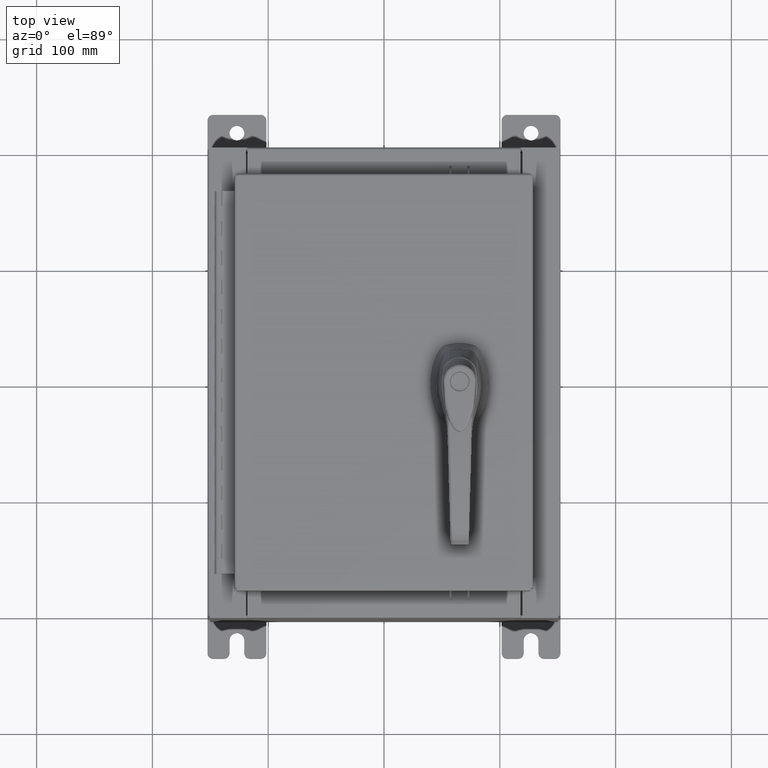
[diagram: clean part render]
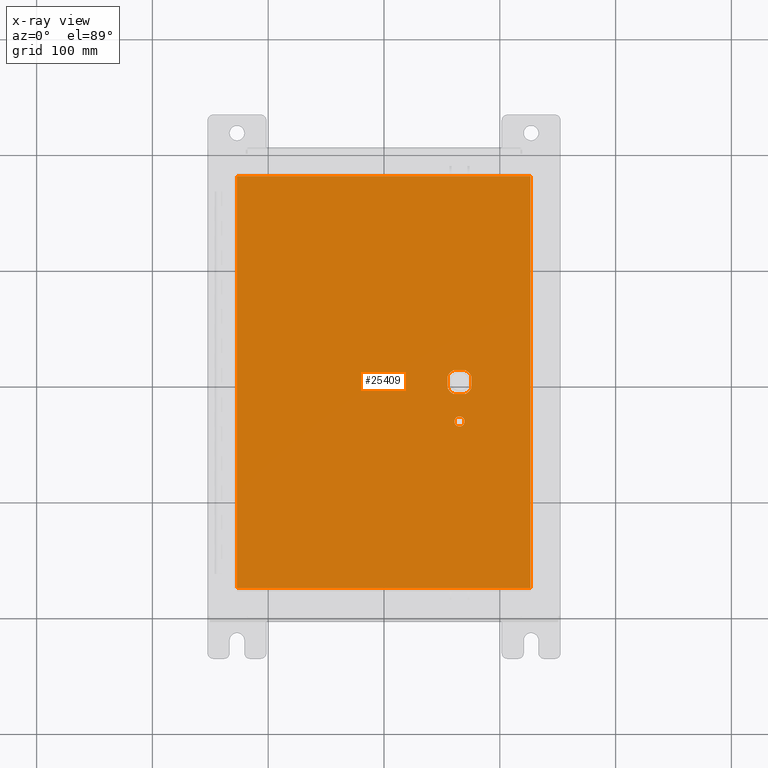
[diagram: x-ray — body ghosted, one internal face saturated and labeled with its STEP entity id]
A machine part, top view, then the same camera in x-ray: the body is ghosted and one INTERNAL B-rep face — a face not visible from any outside direction — is saturated and labeled: STEP entity #25409.
In plain terms, the highlighted planar face has unit normal (0, 0, -1).
Its self-contained STEP definition (entity closure, byte-faithful):
#214 = EDGE_CURVE ( 'NONE', #55148, #54031, #15496, .T. ) ;
#2437 = ORIENTED_EDGE ( 'NONE', *, *, #35450, .T. ) ;
#2931 = EDGE_LOOP ( 'NONE', ( #3816, #52309, #38777, #35025 ) ) ;
#3636 = CARTESIAN_POINT ( 'NONE',  ( 2.577999999999998500, 0.0000000000000000000, -0.07470000000000003000 ) ) ;
#3816 = ORIENTED_EDGE ( 'NONE', *, *, #214, .F. ) ;
#5433 = CARTESIAN_POINT ( 'NONE',  ( 0.0000000000000000000, 0.0000000000000000000, -0.07470000000000000300 ) ) ;
#6138 = PLANE ( 'NONE',  #34715 ) ;
#8822 = ORIENTED_EDGE ( 'NONE', *, *, #102150, .T. ) ;
#8946 = DIRECTION ( 'NONE',  ( -0.0000000000000000000, -0.0000000000000000000, 1.000000000000000000 ) ) ;
#11063 = DIRECTION ( 'NONE',  ( 1.364372904336406500E-015, -1.000000000000000000, 0.0000000000000000000 ) ) ;
#11236 = LINE ( 'NONE', #74907, #30757 ) ;
#11772 = ORIENTED_EDGE ( 'NONE', *, *, #89308, .T. ) ;
#12055 = DIRECTION ( 'NONE',  ( -1.000000000000000000, 0.0000000000000000000, 0.0000000000000000000 ) ) ;
#12228 = VERTEX_POINT ( 'NONE', #63242 ) ;
#13983 = EDGE_CURVE ( 'NONE', #94466, #55148, #40260, .T. ) ;
#14498 = DIRECTION ( 'NONE',  ( 0.0000000000000000000, 0.0000000000000000000, -1.000000000000000000 ) ) ;
#14613 = LINE ( 'NONE', #74428, #74936 ) ;
#14641 = CARTESIAN_POINT ( 'NONE',  ( 2.778227370756308100, 0.4029999999999250300, -0.07470000000000003000 ) ) ;
#15089 = EDGE_CURVE ( 'NONE', #54031, #41289, #27324, .T. ) ;
#15496 = LINE ( 'NONE', #40014, #103333 ) ;
#17088 = DIRECTION ( 'NONE',  ( 1.000000000000000000, 0.0000000000000000000, 0.0000000000000000000 ) ) ;
#17944 = DIRECTION ( 'NONE',  ( -1.000000000000000000, 0.0000000000000000000, 0.0000000000000000000 ) ) ;
#22141 = VERTEX_POINT ( 'NONE', #98907 ) ;
#22365 = DIRECTION ( 'NONE',  ( -0.0000000000000000000, -0.0000000000000000000, 1.000000000000000000 ) ) ;
#24494 = CARTESIAN_POINT ( 'NONE',  ( 4.990299999999998600, 7.006300000000000400, -0.07470000000000021100 ) ) ;
#25409 = ADVANCED_FACE ( 'NONE', ( #97755, #72914, #95127 ), #6138, .T. ) ;
#26704 = CARTESIAN_POINT ( 'NONE',  ( 2.577999999999998500, 0.0000000000000000000, -0.07470000000000003000 ) ) ;
#26997 = AXIS2_PLACEMENT_3D ( 'NONE', #58239, #8946, #66358 ) ;
#27324 = LINE ( 'NONE', #24494, #90230 ) ;
#29190 = CARTESIAN_POINT ( 'NONE',  ( 2.749499999999998500, -1.338000000000000100, -0.07470000000000003000 ) ) ;
#30757 = VECTOR ( 'NONE', #17944, 39.37007874015748100 ) ;
#30870 = VERTEX_POINT ( 'NONE', #103516 ) ;
#31045 = EDGE_CURVE ( 'NONE', #12228, #52940, #60894, .T. ) ;
#31229 = CARTESIAN_POINT ( 'NONE',  ( -4.990300000000000400, 7.006300000000000400, -0.07470000000000019700 ) ) ;
#32452 = DIRECTION ( 'NONE',  ( -1.000000000000000000, -0.0000000000000000000, -0.0000000000000000000 ) ) ;
#33462 = CARTESIAN_POINT ( 'NONE',  ( 2.377772629243688900, 0.4029999999999252000, -0.07470000000000003000 ) ) ;
#34418 = CARTESIAN_POINT ( 'NONE',  ( 2.980999999999924400, -0.2002273707563078100, -0.07470000000000003000 ) ) ;
#34715 = AXIS2_PLACEMENT_3D ( 'NONE', #5433, #14498, #71871 ) ;
#34980 = DIRECTION ( 'NONE',  ( -1.000000000000000000, 8.881784197001256300E-016, 0.0000000000000000000 ) ) ;
#35025 = ORIENTED_EDGE ( 'NONE', *, *, #15089, .F. ) ;
#35450 = EDGE_CURVE ( 'NONE', #92286, #72906, #54897, .T. ) ;
#38353 = ORIENTED_EDGE ( 'NONE', *, *, #31045, .T. ) ;
#38777 = ORIENTED_EDGE ( 'NONE', *, *, #84270, .F. ) ;
#39292 = CARTESIAN_POINT ( 'NONE',  ( 2.577999999999998500, 0.0000000000000000000, -0.07470000000000003000 ) ) ;
#39452 = DIRECTION ( 'NONE',  ( 0.0000000000000000000, -1.000000000000000000, 0.0000000000000000000 ) ) ;
#39980 = CARTESIAN_POINT ( 'NONE',  ( 2.577999999999998500, 0.0000000000000000000, -0.07470000000000003000 ) ) ;
#40014 = CARTESIAN_POINT ( 'NONE',  ( 4.990299999999998600, -7.006300000000000400, -0.07469999999999966900 ) ) ;
#40260 = LINE ( 'NONE', #46136, #61939 ) ;
#41289 = VERTEX_POINT ( 'NONE', #95033 ) ;
#44666 = EDGE_CURVE ( 'NONE', #72675, #22141, #71930, .T. ) ;
#46136 = CARTESIAN_POINT ( 'NONE',  ( -4.990300000000000400, -7.006300000000000400, -0.07470000000000021100 ) ) ;
#46594 = ORIENTED_EDGE ( 'NONE', *, *, #54232, .T. ) ;
#47490 = DIRECTION ( 'NONE',  ( -1.000000000000000000, 0.0000000000000000000, 0.0000000000000000000 ) ) ;
#48179 = DIRECTION ( 'NONE',  ( -1.000000000000000000, 0.0000000000000000000, 0.0000000000000000000 ) ) ;
#48545 = EDGE_CURVE ( 'NONE', #30870, #65405, #51255, .T. ) ;
#48829 = ORIENTED_EDGE ( 'NONE', *, *, #101881, .F. ) ;
#50347 = VECTOR ( 'NONE', #69242, 39.37007874015748100 ) ;
#51255 = CIRCLE ( 'NONE', #83524, 0.4499999999999156900 ) ;
#51695 = CIRCLE ( 'NONE', #26997, 0.1715000000000000700 ) ;
#52255 = CARTESIAN_POINT ( 'NONE',  ( 2.175000000000072700, 0.0000000000000000000, -0.07470000000000003000 ) ) ;
#52309 = ORIENTED_EDGE ( 'NONE', *, *, #13983, .F. ) ;
#52688 = CARTESIAN_POINT ( 'NONE',  ( -4.990299999999999500, -7.006300000000000400, -0.07470000000000000300 ) ) ;
#52940 = VERTEX_POINT ( 'NONE', #34418 ) ;
#53698 = CIRCLE ( 'NONE', #59537, 0.4499999999999156900 ) ;
#54031 = VERTEX_POINT ( 'NONE', #106778 ) ;
#54232 = EDGE_CURVE ( 'NONE', #22141, #73737, #53698, .T. ) ;
#54867 = AXIS2_PLACEMENT_3D ( 'NONE', #71309, #22365, #79648 ) ;
#54897 = CIRCLE ( 'NONE', #54867, 0.1715000000000000700 ) ;
#55148 = VERTEX_POINT ( 'NONE', #74774 ) ;
#55496 = ORIENTED_EDGE ( 'NONE', *, *, #73306, .T. ) ;
#56072 = AXIS2_PLACEMENT_3D ( 'NONE', #39292, #96830, #47490 ) ;
#58239 = CARTESIAN_POINT ( 'NONE',  ( 2.577999999999998500, -1.338000000000000100, -0.07470000000000003000 ) ) ;
#59127 = ORIENTED_EDGE ( 'NONE', *, *, #44666, .T. ) ;
#59537 = AXIS2_PLACEMENT_3D ( 'NONE', #26704, #84054, #34980 ) ;
#60894 = CIRCLE ( 'NONE', #56072, 0.4499999999999156900 ) ;
#61259 = DIRECTION ( 'NONE',  ( -0.0000000000000000000, -0.0000000000000000000, 1.000000000000000000 ) ) ;
#61939 = VECTOR ( 'NONE', #95459, 39.37007874015748100 ) ;
#62810 = LINE ( 'NONE', #31229, #104410 ) ;
#63242 = CARTESIAN_POINT ( 'NONE',  ( 2.778227370756308100, -0.4029999999999252000, -0.07470000000000003000 ) ) ;
#64881 = EDGE_CURVE ( 'NONE', #72906, #92286, #51695, .T. ) ;
#65405 = VERTEX_POINT ( 'NONE', #14641 ) ;
#66358 = DIRECTION ( 'NONE',  ( -1.000000000000000000, 0.0000000000000000000, 0.0000000000000000000 ) ) ;
#69242 = DIRECTION ( 'NONE',  ( 0.0000000000000000000, -1.000000000000000000, 0.0000000000000000000 ) ) ;
#70847 = VERTEX_POINT ( 'NONE', #33462 ) ;
#71019 = EDGE_LOOP ( 'NONE', ( #38353, #48829, #97282, #8822, #11772, #59127, #46594, #55496 ) ) ;
#71309 = CARTESIAN_POINT ( 'NONE',  ( 2.577999999999998500, -1.338000000000000100, -0.07470000000000003000 ) ) ;
#71871 = DIRECTION ( 'NONE',  ( -1.000000000000000000, 0.0000000000000000000, -0.0000000000000000000 ) ) ;
#71930 = LINE ( 'NONE', #52255, #50347 ) ;
#72675 = VERTEX_POINT ( 'NONE', #90570 ) ;
#72906 = VERTEX_POINT ( 'NONE', #29190 ) ;
#72914 = FACE_OUTER_BOUND ( 'NONE', #2931, .T. ) ;
#73119 = AXIS2_PLACEMENT_3D ( 'NONE', #39980, #97556, #48179 ) ;
#73306 = EDGE_CURVE ( 'NONE', #73737, #12228, #14613, .T. ) ;
#73737 = VERTEX_POINT ( 'NONE', #103279 ) ;
#74428 = CARTESIAN_POINT ( 'NONE',  ( 0.0000000000000000000, -0.4029999999999252000, -0.07470000000000003000 ) ) ;
#74774 = CARTESIAN_POINT ( 'NONE',  ( 4.990299999999998600, -7.006300000000000400, -0.07470000000000000300 ) ) ;
#74907 = CARTESIAN_POINT ( 'NONE',  ( 0.0000000000000000000, 0.4029999999999252000, -0.07470000000000003000 ) ) ;
#74936 = VECTOR ( 'NONE', #17088, 39.37007874015748100 ) ;
#76765 = CARTESIAN_POINT ( 'NONE',  ( 2.980999999999924400, 4.067195627826724000E-015, -0.07470000000000003000 ) ) ;
#79648 = DIRECTION ( 'NONE',  ( -1.000000000000000000, 0.0000000000000000000, 0.0000000000000000000 ) ) ;
#83524 = AXIS2_PLACEMENT_3D ( 'NONE', #3636, #61259, #12055 ) ;
#84054 = DIRECTION ( 'NONE',  ( -0.0000000000000000000, -0.0000000000000000000, 1.000000000000000000 ) ) ;
#84270 = EDGE_CURVE ( 'NONE', #41289, #94466, #62810, .T. ) ;
#84631 = LINE ( 'NONE', #76765, #104268 ) ;
#89308 = EDGE_CURVE ( 'NONE', #70847, #72675, #103793, .T. ) ;
#90230 = VECTOR ( 'NONE', #32452, 39.37007874015748100 ) ;
#90570 = CARTESIAN_POINT ( 'NONE',  ( 2.175000000000072700, 0.2002273707563080300, -0.07470000000000003000 ) ) ;
#91520 = ORIENTED_EDGE ( 'NONE', *, *, #64881, .T. ) ;
#92286 = VERTEX_POINT ( 'NONE', #93115 ) ;
#93115 = CARTESIAN_POINT ( 'NONE',  ( 2.406499999999998500, -1.338000000000000100, -0.07470000000000003000 ) ) ;
#94466 = VERTEX_POINT ( 'NONE', #52688 ) ;
#95033 = CARTESIAN_POINT ( 'NONE',  ( -4.990300000000000400, 7.006299999999998600, -0.07470000000000000300 ) ) ;
#95127 = FACE_BOUND ( 'NONE', #71019, .T. ) ;
#95459 = DIRECTION ( 'NONE',  ( 1.000000000000000000, -0.0000000000000000000, -0.0000000000000000000 ) ) ;
#96830 = DIRECTION ( 'NONE',  ( -0.0000000000000000000, -0.0000000000000000000, 1.000000000000000000 ) ) ;
#97282 = ORIENTED_EDGE ( 'NONE', *, *, #48545, .T. ) ;
#97556 = DIRECTION ( 'NONE',  ( -0.0000000000000000000, -0.0000000000000000000, 1.000000000000000000 ) ) ;
#97755 = FACE_BOUND ( 'NONE', #99588, .T. ) ;
#98907 = CARTESIAN_POINT ( 'NONE',  ( 2.175000000000072700, -0.2002273707563079800, -0.07470000000000003000 ) ) ;
#99588 = EDGE_LOOP ( 'NONE', ( #91520, #2437 ) ) ;
#100274 = DIRECTION ( 'NONE',  ( 0.0000000000000000000, 1.000000000000000000, 0.0000000000000000000 ) ) ;
#101881 = EDGE_CURVE ( 'NONE', #30870, #52940, #84631, .T. ) ;
#102150 = EDGE_CURVE ( 'NONE', #65405, #70847, #11236, .T. ) ;
#103279 = CARTESIAN_POINT ( 'NONE',  ( 2.377772629243688900, -0.4029999999999250300, -0.07470000000000003000 ) ) ;
#103333 = VECTOR ( 'NONE', #100274, 39.37007874015748100 ) ;
#103516 = CARTESIAN_POINT ( 'NONE',  ( 2.980999999999924400, 0.2002273707563080300, -0.07470000000000003000 ) ) ;
#103793 = CIRCLE ( 'NONE', #73119, 0.4499999999999156900 ) ;
#104268 = VECTOR ( 'NONE', #11063, 39.37007874015748100 ) ;
#104410 = VECTOR ( 'NONE', #39452, 39.37007874015748100 ) ;
#106778 = CARTESIAN_POINT ( 'NONE',  ( 4.990299999999997700, 7.006300000000000400, -0.07470000000000000300 ) ) ;